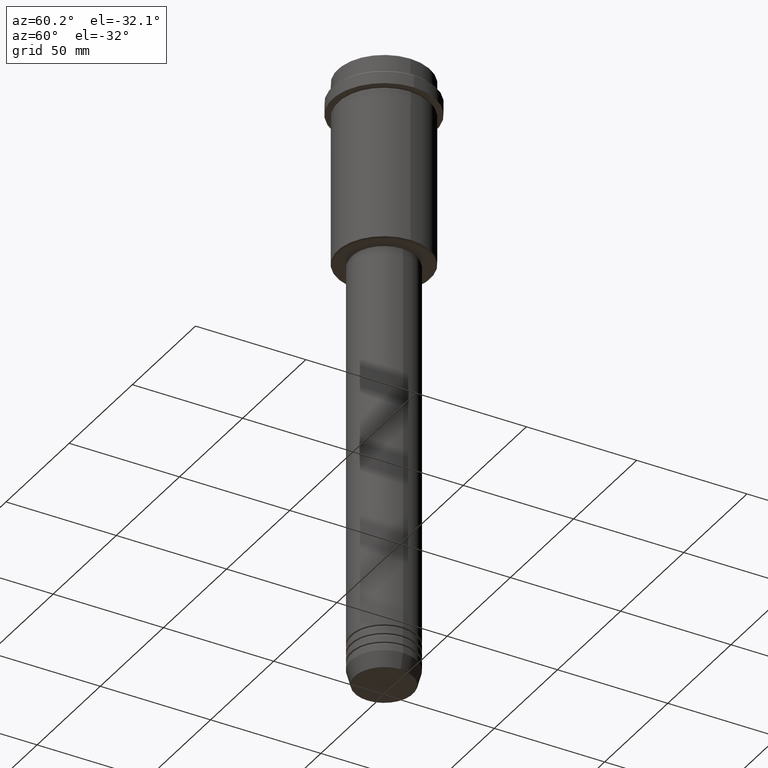
[diagram: clean part render]
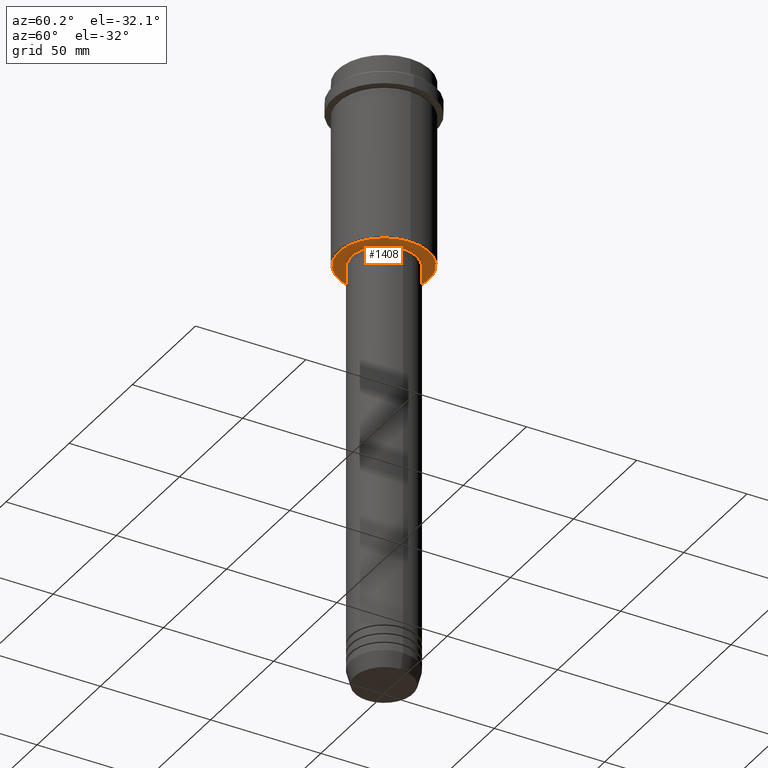
[diagram: same view with one face highlighted and labeled with its STEP entity id]
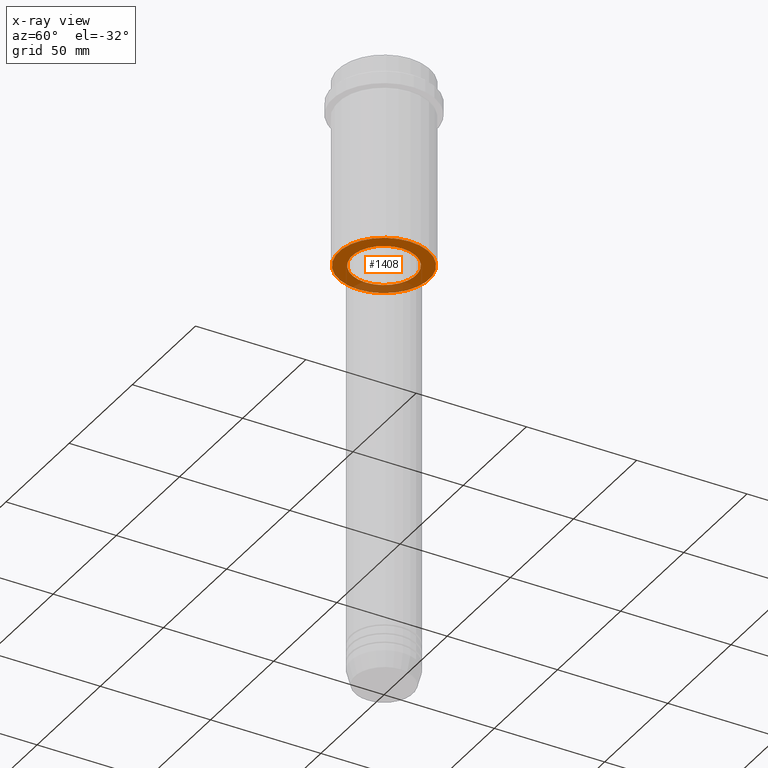
[diagram: x-ray of the same camera — body ghosted, the highlighted face saturated]
A machine part, auxiliary view. The second image highlights one B-rep face of the part: STEP entity #1408.
The next image is the same camera in x-ray: the body ghosted, the highlighted face saturated — about 20% of this face is hidden behind the body in this view.
In plain terms, the highlighted planar face has unit normal (0, 0, -1).
Its self-contained STEP definition (entity closure, byte-faithful):
#24 = DIRECTION ( 'NONE',  ( 0.000000000000000000, 0.000000000000000000, -1.000000000000000000 ) ) ;
#44 = CARTESIAN_POINT ( 'NONE',  ( -14.49999999999999822, 1.775737858763662015E-15, -85.00000000000001421 ) ) ;
#78 = ORIENTED_EDGE ( 'NONE', *, *, #1325, .T. ) ;
#81 = AXIS2_PLACEMENT_3D ( 'NONE', #663, #234, #333 ) ;
#95 = VERTEX_POINT ( 'NONE', #680 ) ;
#113 = VERTEX_POINT ( 'NONE', #44 ) ;
#160 = DIRECTION ( 'NONE',  ( -1.000000000000000000, 0.000000000000000000, -0.000000000000000000 ) ) ;
#203 = DIRECTION ( 'NONE',  ( -1.000000000000000000, 0.000000000000000000, 0.000000000000000000 ) ) ;
#234 = DIRECTION ( 'NONE',  ( -0.000000000000000000, -0.000000000000000000, 1.000000000000000000 ) ) ;
#274 = ORIENTED_EDGE ( 'NONE', *, *, #516, .T. ) ;
#333 = DIRECTION ( 'NONE',  ( 1.000000000000000000, 0.000000000000000000, 0.000000000000000000 ) ) ;
#385 = CIRCLE ( 'NONE', #81, 14.49999999999999822 ) ;
#464 = AXIS2_PLACEMENT_3D ( 'NONE', #1417, #828, #604 ) ;
#490 = EDGE_CURVE ( 'NONE', #557, #1397, #867, .T. ) ;
#516 = EDGE_CURVE ( 'NONE', #1397, #557, #953, .T. ) ;
#545 = ORIENTED_EDGE ( 'NONE', *, *, #1222, .T. ) ;
#557 = VERTEX_POINT ( 'NONE', #988 ) ;
#604 = DIRECTION ( 'NONE',  ( 1.000000000000000000, 0.000000000000000000, 0.000000000000000000 ) ) ;
#613 = EDGE_LOOP ( 'NONE', ( #1279, #274 ) ) ;
#633 = CIRCLE ( 'NONE', #464, 14.49999999999999822 ) ;
#661 = CARTESIAN_POINT ( 'NONE',  ( 0.000000000000000000, 0.000000000000000000, -85.00000000000001421 ) ) ;
#663 = CARTESIAN_POINT ( 'NONE',  ( 0.000000000000000000, 0.000000000000000000, -85.00000000000001421 ) ) ;
#680 = CARTESIAN_POINT ( 'NONE',  ( 14.49999999999999822, 0.000000000000000000, -85.00000000000001421 ) ) ;
#693 = PLANE ( 'NONE',  #1409 ) ;
#709 = FACE_OUTER_BOUND ( 'NONE', #613, .T. ) ;
#761 = DIRECTION ( 'NONE',  ( 0.000000000000000000, 0.000000000000000000, -1.000000000000000000 ) ) ;
#774 = AXIS2_PLACEMENT_3D ( 'NONE', #1072, #761, #203 ) ;
#828 = DIRECTION ( 'NONE',  ( -0.000000000000000000, -0.000000000000000000, 1.000000000000000000 ) ) ;
#836 = EDGE_LOOP ( 'NONE', ( #78, #545 ) ) ;
#865 = AXIS2_PLACEMENT_3D ( 'NONE', #661, #1177, #1295 ) ;
#867 = CIRCLE ( 'NONE', #774, 20.49999999999990763 ) ;
#953 = CIRCLE ( 'NONE', #865, 20.49999999999990763 ) ;
#988 = CARTESIAN_POINT ( 'NONE',  ( 20.49999999999990763, 0.000000000000000000, -85.00000000000001421 ) ) ;
#1015 = CARTESIAN_POINT ( 'NONE',  ( -20.49999999999990763, 2.541142108230752352E-15, -85.00000000000001421 ) ) ;
#1072 = CARTESIAN_POINT ( 'NONE',  ( 0.000000000000000000, 0.000000000000000000, -85.00000000000001421 ) ) ;
#1124 = FACE_BOUND ( 'NONE', #836, .T. ) ;
#1134 = CARTESIAN_POINT ( 'NONE',  ( 0.000000000000000000, 21.00000000000000000, -85.00000000000001421 ) ) ;
#1177 = DIRECTION ( 'NONE',  ( 0.000000000000000000, 0.000000000000000000, -1.000000000000000000 ) ) ;
#1222 = EDGE_CURVE ( 'NONE', #113, #95, #385, .T. ) ;
#1279 = ORIENTED_EDGE ( 'NONE', *, *, #490, .T. ) ;
#1295 = DIRECTION ( 'NONE',  ( -1.000000000000000000, 0.000000000000000000, 0.000000000000000000 ) ) ;
#1325 = EDGE_CURVE ( 'NONE', #95, #113, #633, .T. ) ;
#1397 = VERTEX_POINT ( 'NONE', #1015 ) ;
#1408 = ADVANCED_FACE ( 'NONE', ( #709, #1124 ), #693, .T. ) ;
#1409 = AXIS2_PLACEMENT_3D ( 'NONE', #1134, #24, #160 ) ;
#1417 = CARTESIAN_POINT ( 'NONE',  ( 0.000000000000000000, 0.000000000000000000, -85.00000000000001421 ) ) ;